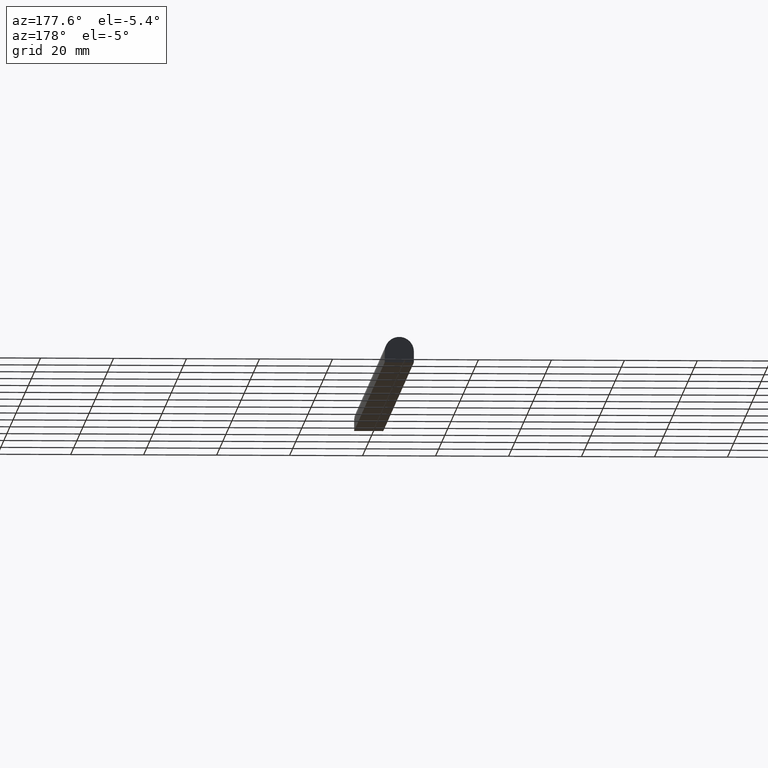
[diagram: clean part render]
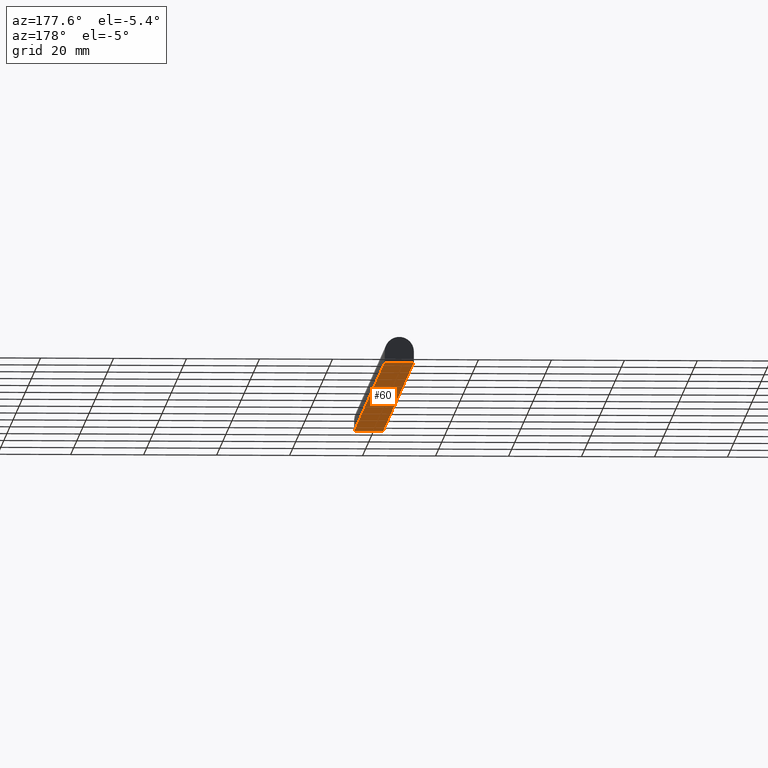
[diagram: same view with one face highlighted and labeled with its STEP entity id]
A machine part, auxiliary view. The second image highlights one B-rep face of the part: STEP entity #60.
In plain terms, the highlighted planar face has unit normal (0, 0, -1).
Its self-contained STEP definition (entity closure, byte-faithful):
#4 = ORIENTED_EDGE ( 'NONE', *, *, #15, .F. ) ;
#8 = EDGE_CURVE ( 'NONE', #192, #36, #125, .T. ) ;
#15 = EDGE_CURVE ( 'NONE', #58, #192, #37, .T. ) ;
#16 = ORIENTED_EDGE ( 'NONE', *, *, #8, .F. ) ;
#30 = VECTOR ( 'NONE', #172, 1000.000000000000000 ) ;
#34 = VECTOR ( 'NONE', #78, 1000.000000000000000 ) ;
#36 = VERTEX_POINT ( 'NONE', #173 ) ;
#37 = LINE ( 'NONE', #225, #34 ) ;
#41 = CARTESIAN_POINT ( 'NONE',  ( -4.000000000000000000, 200.0000000000000000, -3.500000000000000000 ) ) ;
#45 = DIRECTION ( 'NONE',  ( 0.0000000000000000000, 0.0000000000000000000, -1.000000000000000000 ) ) ;
#46 = EDGE_LOOP ( 'NONE', ( #16, #4, #179, #239 ) ) ;
#58 = VERTEX_POINT ( 'NONE', #41 ) ;
#60 = ADVANCED_FACE ( 'NONE', ( #176 ), #169, .T. ) ;
#78 = DIRECTION ( 'NONE',  ( 0.0000000000000000000, -1.000000000000000000, 0.0000000000000000000 ) ) ;
#79 = VECTOR ( 'NONE', #240, 1000.000000000000000 ) ;
#88 = CARTESIAN_POINT ( 'NONE',  ( -4.000000000000000000, 1000.000000000000000, -3.500000000000000000 ) ) ;
#91 = DIRECTION ( 'NONE',  ( -1.000000000000000000, 0.0000000000000000000, 0.0000000000000000000 ) ) ;
#93 = EDGE_CURVE ( 'NONE', #210, #36, #121, .T. ) ;
#109 = CARTESIAN_POINT ( 'NONE',  ( -4.000000000000000000, 0.0000000000000000000, -3.500000000000000000 ) ) ;
#121 = LINE ( 'NONE', #238, #30 ) ;
#125 = LINE ( 'NONE', #207, #229 ) ;
#126 = EDGE_CURVE ( 'NONE', #58, #210, #127, .T. ) ;
#127 = LINE ( 'NONE', #219, #79 ) ;
#169 = PLANE ( 'NONE',  #178 ) ;
#172 = DIRECTION ( 'NONE',  ( 0.0000000000000000000, -1.000000000000000000, 0.0000000000000000000 ) ) ;
#173 = CARTESIAN_POINT ( 'NONE',  ( 4.000000000000000000, 0.0000000000000000000, -3.500000000000000000 ) ) ;
#176 = FACE_OUTER_BOUND ( 'NONE', #46, .T. ) ;
#178 = AXIS2_PLACEMENT_3D ( 'NONE', #88, #45, #91 ) ;
#179 = ORIENTED_EDGE ( 'NONE', *, *, #126, .T. ) ;
#185 = DIRECTION ( 'NONE',  ( 1.000000000000000000, -0.0000000000000000000, -0.0000000000000000000 ) ) ;
#192 = VERTEX_POINT ( 'NONE', #109 ) ;
#207 = CARTESIAN_POINT ( 'NONE',  ( 0.0000000000000000000, 0.0000000000000000000, -3.500000000000000000 ) ) ;
#210 = VERTEX_POINT ( 'NONE', #223 ) ;
#219 = CARTESIAN_POINT ( 'NONE',  ( 0.0000000000000000000, 200.0000000000000000, -3.500000000000000000 ) ) ;
#223 = CARTESIAN_POINT ( 'NONE',  ( 4.000000000000000000, 200.0000000000000000, -3.500000000000000000 ) ) ;
#225 = CARTESIAN_POINT ( 'NONE',  ( -4.000000000000000000, 1000.000000000000000, -3.500000000000000000 ) ) ;
#229 = VECTOR ( 'NONE', #185, 1000.000000000000000 ) ;
#238 = CARTESIAN_POINT ( 'NONE',  ( 4.000000000000000000, 1000.000000000000000, -3.500000000000000000 ) ) ;
#239 = ORIENTED_EDGE ( 'NONE', *, *, #93, .T. ) ;
#240 = DIRECTION ( 'NONE',  ( 1.000000000000000000, -0.0000000000000000000, -0.0000000000000000000 ) ) ;